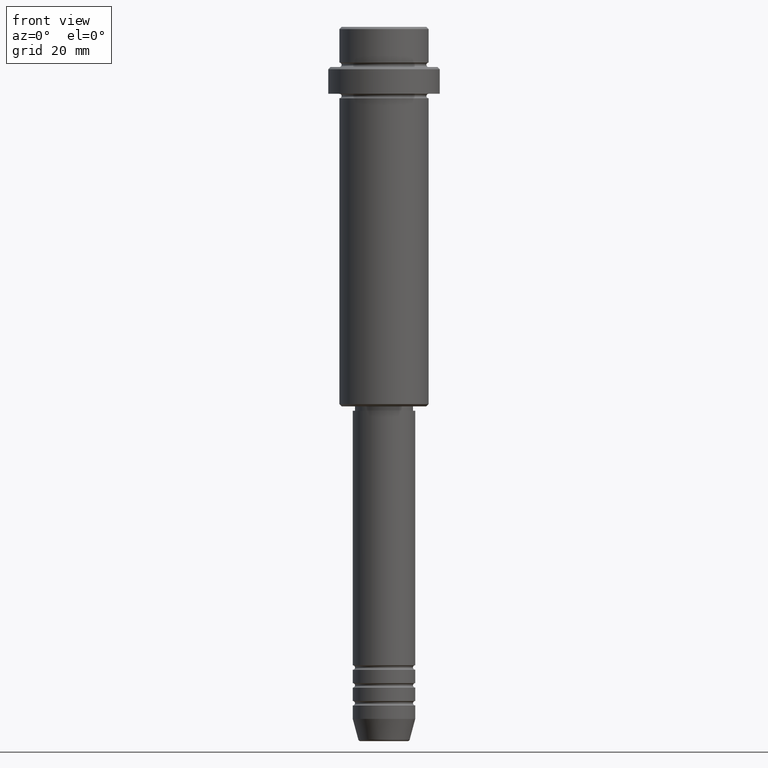
[diagram: clean part render]
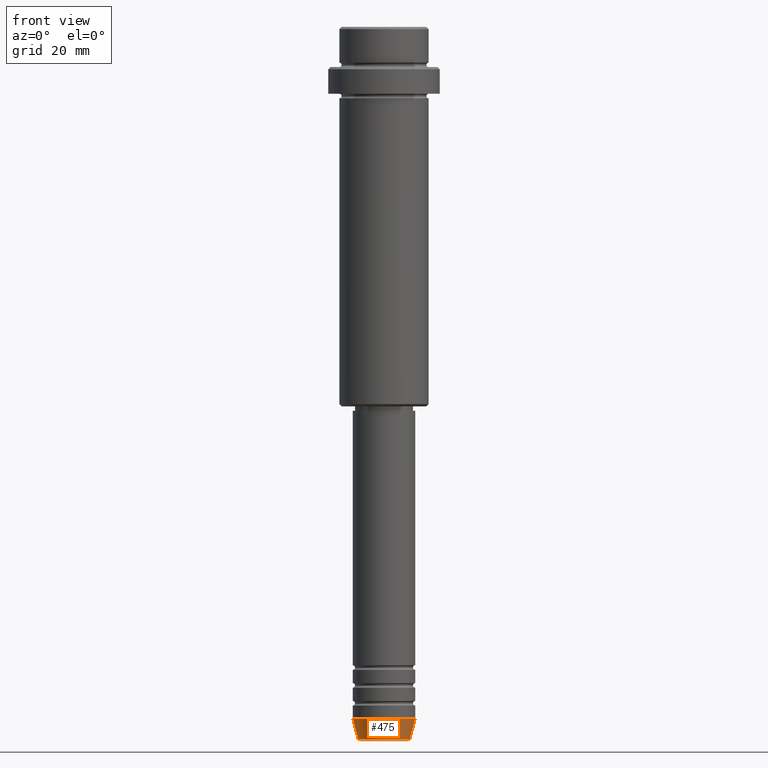
[diagram: same view with one face highlighted and labeled with its STEP entity id]
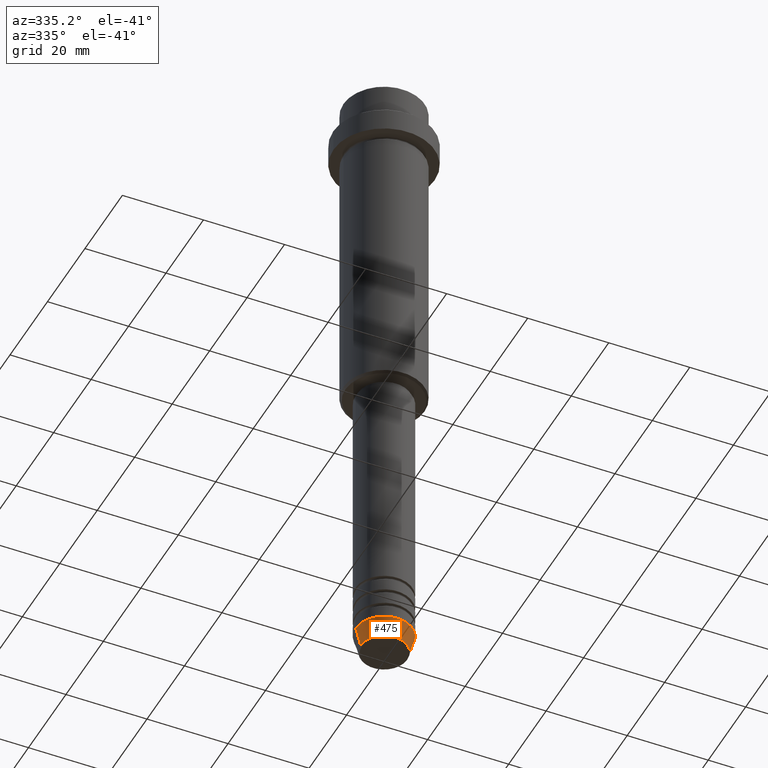
[diagram: same view with one face highlighted and labeled with its STEP entity id]
A machine part, front view. The second image highlights one B-rep face of the part: STEP entity #475.
A second angle (auxiliary view) of the same face is appended — the face is thin or edge-on in the first view.
In plain terms, the highlighted conical surface has half-angle 15 deg.
Its self-contained STEP definition (entity closure, byte-faithful):
#17 = CARTESIAN_POINT ( 'NONE',  ( -7.000000000000000000, 8.572527594031473190E-16, -154.9999999999999716 ) ) ;
#31 = CARTESIAN_POINT ( 'NONE',  ( -5.759553456999435994, 7.812973149831951773E-16, -159.6294095225512137 ) ) ;
#36 = CONICAL_SURFACE ( 'NONE', #257, 7.000000000000000000, 0.2617993877991500740 ) ;
#76 = ORIENTED_EDGE ( 'NONE', *, *, #1256, .T. ) ;
#110 = AXIS2_PLACEMENT_3D ( 'NONE', #657, #236, #1278 ) ;
#167 = LINE ( 'NONE', #1033, #1208 ) ;
#183 = EDGE_CURVE ( 'NONE', #926, #326, #1237, .T. ) ;
#205 = AXIS2_PLACEMENT_3D ( 'NONE', #877, #862, #1328 ) ;
#236 = DIRECTION ( 'NONE',  ( -0.000000000000000000, -0.000000000000000000, 1.000000000000000000 ) ) ;
#257 = AXIS2_PLACEMENT_3D ( 'NONE', #1251, #611, #603 ) ;
#262 = DIRECTION ( 'NONE',  ( -0.2588190451025213501, 3.169619151431772337E-17, 0.9659258262890680902 ) ) ;
#275 = ORIENTED_EDGE ( 'NONE', *, *, #183, .T. ) ;
#326 = VERTEX_POINT ( 'NONE', #755 ) ;
#406 = VECTOR ( 'NONE', #757, 1000.000000000000000 ) ;
#475 = ADVANCED_FACE ( 'NONE', ( #817 ), #36, .T. ) ;
#587 = CARTESIAN_POINT ( 'NONE',  ( 5.759553456999435994, 0.000000000000000000, -159.6294095225512137 ) ) ;
#603 = DIRECTION ( 'NONE',  ( 1.000000000000000000, 0.000000000000000000, 0.000000000000000000 ) ) ;
#611 = DIRECTION ( 'NONE',  ( -0.000000000000000000, -0.000000000000000000, 1.000000000000000000 ) ) ;
#657 = CARTESIAN_POINT ( 'NONE',  ( 0.000000000000000000, 0.000000000000000000, -154.9999999999999716 ) ) ;
#725 = EDGE_LOOP ( 'NONE', ( #942, #76, #275, #729 ) ) ;
#729 = ORIENTED_EDGE ( 'NONE', *, *, #804, .F. ) ;
#755 = CARTESIAN_POINT ( 'NONE',  ( 7.000000000000000000, 0.000000000000000000, -154.9999999999999716 ) ) ;
#757 = DIRECTION ( 'NONE',  ( 0.2588190451025213501, 0.000000000000000000, 0.9659258262890680902 ) ) ;
#773 = CIRCLE ( 'NONE', #205, 5.759553456999435994 ) ;
#804 = EDGE_CURVE ( 'NONE', #991, #326, #1157, .T. ) ;
#817 = FACE_OUTER_BOUND ( 'NONE', #725, .T. ) ;
#862 = DIRECTION ( 'NONE',  ( -0.000000000000000000, -0.000000000000000000, 1.000000000000000000 ) ) ;
#877 = CARTESIAN_POINT ( 'NONE',  ( 0.000000000000000000, 0.000000000000000000, -159.6294095225512137 ) ) ;
#926 = VERTEX_POINT ( 'NONE', #587 ) ;
#942 = ORIENTED_EDGE ( 'NONE', *, *, #1396, .F. ) ;
#991 = VERTEX_POINT ( 'NONE', #17 ) ;
#1033 = CARTESIAN_POINT ( 'NONE',  ( -7.000000000000000000, 8.572527594031473190E-16, -154.9999999999999716 ) ) ;
#1157 = CIRCLE ( 'NONE', #110, 7.000000000000000000 ) ;
#1208 = VECTOR ( 'NONE', #262, 1000.000000000000000 ) ;
#1227 = CARTESIAN_POINT ( 'NONE',  ( 7.000000000000000000, 0.000000000000000000, -154.9999999999999716 ) ) ;
#1237 = LINE ( 'NONE', #1227, #406 ) ;
#1251 = CARTESIAN_POINT ( 'NONE',  ( 0.000000000000000000, 0.000000000000000000, -154.9999999999999716 ) ) ;
#1256 = EDGE_CURVE ( 'NONE', #1323, #926, #773, .T. ) ;
#1278 = DIRECTION ( 'NONE',  ( 1.000000000000000000, 0.000000000000000000, 0.000000000000000000 ) ) ;
#1323 = VERTEX_POINT ( 'NONE', #31 ) ;
#1328 = DIRECTION ( 'NONE',  ( 1.000000000000000000, 0.000000000000000000, 0.000000000000000000 ) ) ;
#1396 = EDGE_CURVE ( 'NONE', #1323, #991, #167, .T. ) ;